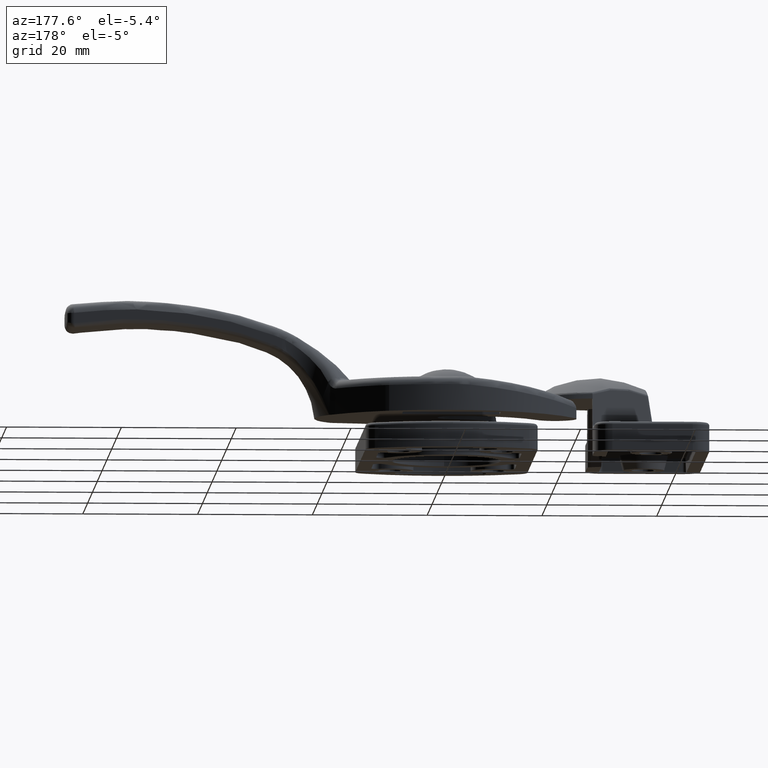
[diagram: clean part render]
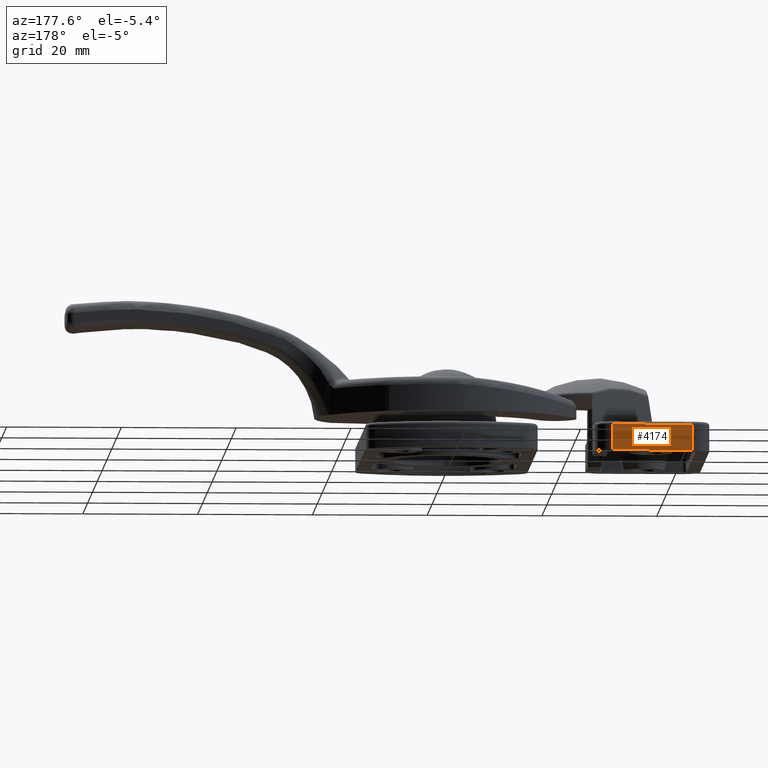
[diagram: same view with one face highlighted and labeled with its STEP entity id]
A machine part, auxiliary view. The second image highlights one B-rep face of the part: STEP entity #4174.
In plain terms, the highlighted planar face has unit normal (-0, 1, -0).
Its self-contained STEP definition (entity closure, byte-faithful):
#462=PLANE('',#4568);
#547=LINE('',#6929,#719);
#553=LINE('',#6970,#725);
#554=LINE('',#6972,#726);
#555=LINE('',#6973,#727);
#719=VECTOR('',#5323,4.5000000001083);
#725=VECTOR('',#5343,13.9999999995032);
#726=VECTOR('',#5344,4.49999999989579);
#727=VECTOR('',#5345,13.9999999989403);
#1081=FACE_OUTER_BOUND('',#1391,.T.);
#1391=EDGE_LOOP('',(#3195,#3196,#3197,#3198));
#1965=VERTEX_POINT('',#6926);
#1966=VERTEX_POINT('',#6928);
#1974=VERTEX_POINT('',#6969);
#1975=VERTEX_POINT('',#6971);
#2409=EDGE_CURVE('',#1965,#1966,#547,.T.);
#2420=EDGE_CURVE('',#1965,#1974,#553,.T.);
#2421=EDGE_CURVE('',#1974,#1975,#554,.T.);
#2422=EDGE_CURVE('',#1975,#1966,#555,.T.);
#3195=ORIENTED_EDGE('',*,*,#2409,.F.);
#3196=ORIENTED_EDGE('',*,*,#2420,.T.);
#3197=ORIENTED_EDGE('',*,*,#2421,.T.);
#3198=ORIENTED_EDGE('',*,*,#2422,.T.);
#4174=ADVANCED_FACE('',(#1081),#462,.T.);
#4568=AXIS2_PLACEMENT_3D('',#6968,#5341,#5342);
#5323=DIRECTION('',(0.,1.,0.));
#5341=DIRECTION('center_axis',(0.,0.,1.));
#5342=DIRECTION('ref_axis',(1.,0.,0.));
#5343=DIRECTION('',(1.,0.,0.));
#5344=DIRECTION('',(0.,1.,0.));
#5345=DIRECTION('',(-1.,0.,0.));
#6926=CARTESIAN_POINT('',(2.00000000049685,4.535,22.2500000005));
#6928=CARTESIAN_POINT('',(2.00000000099843,9.0350000001083,22.2500000001482));
#6929=CARTESIAN_POINT('',(2.0000000009937,6.785,22.250000001));
#6968=CARTESIAN_POINT('Origin',(9.0000000005,4.535,22.25));
#6969=CARTESIAN_POINT('',(16.,4.535,22.25));
#6970=CARTESIAN_POINT('',(9.0000000005,4.535,22.25));
#6971=CARTESIAN_POINT('',(15.9999999999387,9.03499999989579,22.2500000000249));
#6972=CARTESIAN_POINT('',(16.,4.535,22.25));
#6973=CARTESIAN_POINT('',(9.0000000005,9.035,22.25));